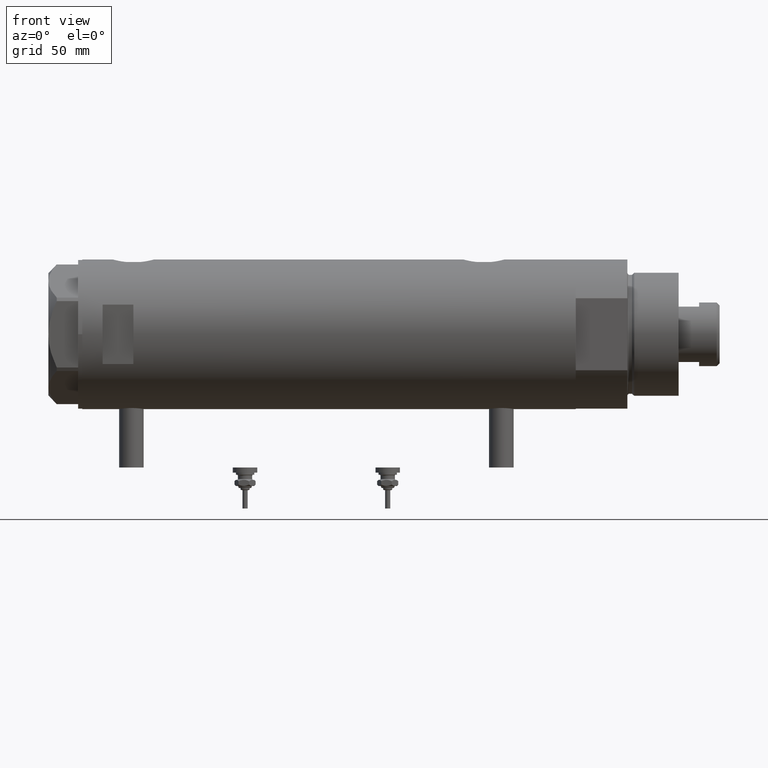
[diagram: clean part render]
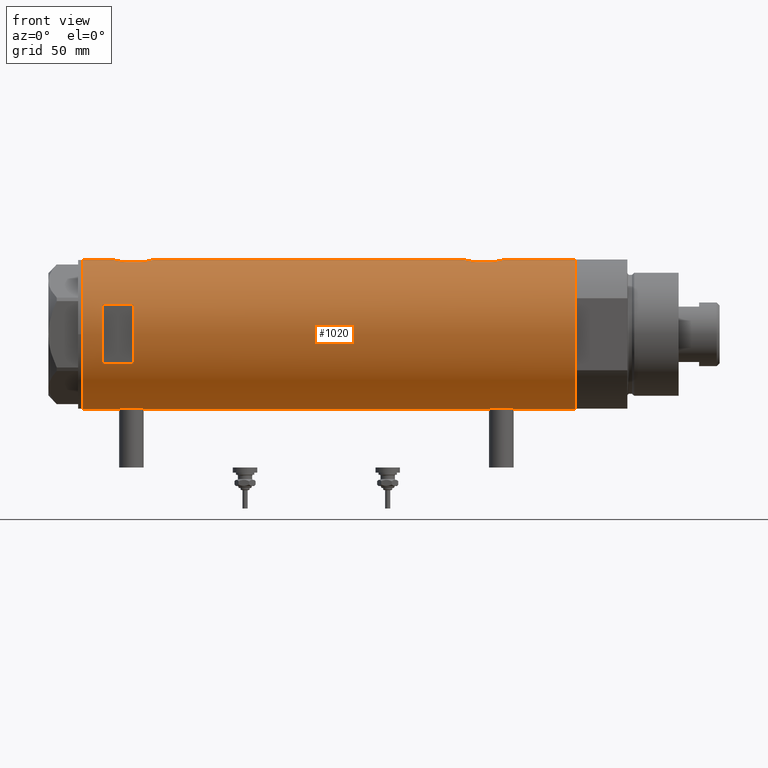
[diagram: same view with one face highlighted and labeled with its STEP entity id]
A machine part, front view. The second image highlights one B-rep face of the part: STEP entity #1020.
In plain terms, the highlighted cylindrical surface (partial cylindrical patch) has radius 36.5 mm, axis along (-1, -0, 0).
Its self-contained STEP definition (entity closure, byte-faithful):
#9 = VERTEX_POINT ( 'NONE', #5105 ) ;
#27 = AXIS2_PLACEMENT_3D ( 'NONE', #1417, #3263, #978 ) ;
#57 = VERTEX_POINT ( 'NONE', #4747 ) ;
#107 = CARTESIAN_POINT ( 'NONE',  ( -36.49297138689434661, -0.8222528563518530786, -77.89066887946569295 ) ) ;
#166 = CARTESIAN_POINT ( 'NONE',  ( 36.48960339336947101, -1.002724032967601708, 85.43775134026506635 ) ) ;
#170 = VERTEX_POINT ( 'NONE', #5384 ) ;
#174 = VECTOR ( 'NONE', #3388, 1000.000000000000000 ) ;
#179 = CARTESIAN_POINT ( 'NONE',  ( -36.35061318816141096, -3.303361544904982239, 91.09035958056982452 ) ) ;
#186 = CARTESIAN_POINT ( 'NONE',  ( 36.41856252531823657, -2.482507212621166470, -85.29956512846501937 ) ) ;
#204 = CARTESIAN_POINT ( 'NONE',  ( -36.44621655743049615, -2.016281777336074832, 90.47017023300885796 ) ) ;
#261 = CARTESIAN_POINT ( 'NONE',  ( -36.49315367594273596, -0.8144497809045447845, 90.18960214445247914 ) ) ;
#286 = CARTESIAN_POINT ( 'NONE',  ( -36.19599073318030236, -4.702920041824403263, -79.97846168323422944 ) ) ;
#287 = CARTESIAN_POINT ( 'NONE',  ( 35.52323553852023963, -8.411295122831250026, -70.10247607048910368 ) ) ;
#310 = LINE ( 'NONE', #2607, #1827 ) ;
#340 = CARTESIAN_POINT ( 'NONE',  ( -36.50000000000000000, 4.469960816887838430E-15, -120.4000000000000057 ) ) ;
#344 = CARTESIAN_POINT ( 'NONE',  ( -36.19666146462960654, -4.704890678739094945, -88.23429859510781625 ) ) ;
#381 = DIRECTION ( 'NONE',  ( 0.000000000000000000, 0.000000000000000000, 1.000000000000000000 ) ) ;
#392 = CARTESIAN_POINT ( 'NONE',  ( 36.50000000000000000, 4.344614706140975428E-19, 105.4000000000000057 ) ) ;
#399 = CARTESIAN_POINT ( 'NONE',  ( -35.98821803976956346, -6.090959022952117330, -82.68426116850582730 ) ) ;
#404 = ORIENTED_EDGE ( 'NONE', *, *, #720, .F. ) ;
#452 = CARTESIAN_POINT ( 'NONE',  ( 36.29527920868844859, -3.886508670267145416, -84.82716275830861719 ) ) ;
#499 = VECTOR ( 'NONE', #3666, 1000.000000000000000 ) ;
#502 = DIRECTION ( 'NONE',  ( 0.000000000000000000, 0.000000000000000000, 1.000000000000000000 ) ) ;
#511 = EDGE_CURVE ( 'NONE', #3649, #4771, #5029, .T. ) ;
#519 = ORIENTED_EDGE ( 'NONE', *, *, #3572, .T. ) ;
#525 = CARTESIAN_POINT ( 'NONE',  ( -36.43335814606993495, -2.212659578761325463, -78.25123600830491455 ) ) ;
#532 = CARTESIAN_POINT ( 'NONE',  ( 35.79638309643555516, -7.141827709208434349, 102.4170192696955013 ) ) ;
#538 = EDGE_CURVE ( 'NONE', #3658, #4526, #3671, .T. ) ;
#587 = CARTESIAN_POINT ( 'NONE',  ( -36.50000000000000000, 4.469960816887838430E-15, -120.4000000000000057 ) ) ;
#615 = CARTESIAN_POINT ( 'NONE',  ( 36.34184199234172041, -3.427106516421255744, 85.99259086319968048 ) ) ;
#627 = CARTESIAN_POINT ( 'NONE',  ( -36.26692673949090562, -4.128477002029503851, 91.69000012567835256 ) ) ;
#646 = CARTESIAN_POINT ( 'NONE',  ( 35.29999999999999716, -9.282241108697837362, 99.12021504754764578 ) ) ;
#647 = CARTESIAN_POINT ( 'NONE',  ( -36.50000000000000000, 4.469960816887838430E-15, -120.4000000000000057 ) ) ;
#672 = CARTESIAN_POINT ( 'NONE',  ( 35.52323553852023963, -8.411295122831250026, 100.8975239295108821 ) ) ;
#673 = CARTESIAN_POINT ( 'NONE',  ( 35.39807338191549491, -8.909271871950329214, -70.94919617267213141 ) ) ;
#681 = CARTESIAN_POINT ( 'NONE',  ( -36.49999999999999289, -0.4082012689449562859, 90.15000000000001990 ) ) ;
#689 = CARTESIAN_POINT ( 'NONE',  ( 36.44881677724178104, -1.995085670027227032, -85.41180345369463112 ) ) ;
#714 = CARTESIAN_POINT ( 'NONE',  ( -36.06543684817881257, -5.617774235967367247, 99.16954447971704667 ) ) ;
#720 = EDGE_CURVE ( 'NONE', #4771, #2738, #5115, .T. ) ;
#735 = EDGE_CURVE ( 'NONE', #2236, #3239, #4316, .T. ) ;
#763 = CARTESIAN_POINT ( 'NONE',  ( 14.49137674618942739, -33.50000000000000000, 95.40000000000000568 ) ) ;
#765 = ORIENTED_EDGE ( 'NONE', *, *, #2358, .T. ) ;
#772 = CARTESIAN_POINT ( 'NONE',  ( -36.30107494031872051, -3.820993528321233068, 101.3630615353631157 ) ) ;
#829 = CARTESIAN_POINT ( 'NONE',  ( -36.01675918113430441, -5.920026275461277798, -86.11439556517892413 ) ) ;
#835 = CARTESIAN_POINT ( 'NONE',  ( -36.44454782745417276, -2.020757099930494682, 102.3178586442099913 ) ) ;
#899 = B_SPLINE_CURVE_WITH_KNOTS ( 'NONE', 3,
 ( #3720, #1014, #4720, #1925, #3782, #5573, #2837, #5190, #4690, #5138, #2796, #4750, #615, #2436, #4182, #166, #3839, #1063 ),
 .UNSPECIFIED., .F., .F.,
 ( 4, 2, 2, 2, 2, 2, 2, 2, 4 ),
 ( -0.01189883390545606531, -0.008924125429092034240, -0.008180448310001031675, -0.007436771190910029979, -0.005949416952728023983, -0.004462062714546017987, -0.002974708476364010257, -0.001487354238182005128, 1.734723475976807094E-18 ),
 .UNSPECIFIED. ) ;
#907 = ORIENTED_EDGE ( 'NONE', *, *, #4025, .F. ) ;
#910 = CARTESIAN_POINT ( 'NONE',  ( 36.18850502651835654, -4.779575967213809840, -84.39779152890152147 ) ) ;
#915 = EDGE_CURVE ( 'NONE', #2116, #9, #4104, .T. ) ;
#919 = CARTESIAN_POINT ( 'NONE',  ( -36.47262891311153510, -1.427622242603855396, -78.01175370788301677 ) ) ;
#978 = DIRECTION ( 'NONE',  ( 1.000000000000000000, 0.000000000000000000, 0.000000000000000000 ) ) ;
#982 = AXIS2_PLACEMENT_3D ( 'NONE', #2590, #1775, #1712 ) ;
#989 = CARTESIAN_POINT ( 'NONE',  ( 36.00092304812866217, -6.029438422680412302, 103.3930815557365008 ) ) ;
#1006 = CARTESIAN_POINT ( 'NONE',  ( 35.29999999999999716, -9.282241108697837362, -120.4000000000000057 ) ) ;
#1014 = CARTESIAN_POINT ( 'NONE',  ( 35.39794035667548400, -8.909777761736840773, 90.75045840910549089 ) ) ;
#1018 = CARTESIAN_POINT ( 'NONE',  ( 36.50000000000000711, -0.4962708696651116913, 105.4000000000000199 ) ) ;
#1020 = ADVANCED_FACE ( 'NONE', ( #2763, #3295 ), #2836, .T. ) ;
#1063 = CARTESIAN_POINT ( 'NONE',  ( 36.50000000000000000, 0.000000000000000000, 85.40000000000001990 ) ) ;
#1086 = DIRECTION ( 'NONE',  ( 1.000000000000000000, 0.000000000000000000, 0.000000000000000000 ) ) ;
#1095 = CARTESIAN_POINT ( 'NONE',  ( 35.29999999999999716, -9.282241108697837362, -79.32021504754763441 ) ) ;
#1109 = CARTESIAN_POINT ( 'NONE',  ( -36.01639592019625979, -5.922235714778421034, 98.40796802426915235 ) ) ;
#1158 = CARTESIAN_POINT ( 'NONE',  ( 36.41918031349423757, -2.473644131148923009, -65.89811654536809726 ) ) ;
#1192 = VECTOR ( 'NONE', #5930, 1000.000000000000000 ) ;
#1222 = CARTESIAN_POINT ( 'NONE',  ( -36.21356728133255842, -4.566014386638764577, -79.82737339235254126 ) ) ;
#1227 = DIRECTION ( 'NONE',  ( 1.000000000000000000, 0.000000000000000000, 0.000000000000000000 ) ) ;
#1249 = CARTESIAN_POINT ( 'NONE',  ( -36.30107494031872051, -3.820993528321233068, -79.13693846463692694 ) ) ;
#1276 = CARTESIAN_POINT ( 'NONE',  ( -36.06605150775667568, -5.613853192123348101, -86.87765688272544651 ) ) ;
#1279 = VECTOR ( 'NONE', #502, 1000.000000000000000 ) ;
#1287 = CIRCLE ( 'NONE', #2153, 36.50000000000000000 ) ;
#1304 = CARTESIAN_POINT ( 'NONE',  ( -36.49315367594273596, -0.8144497809045447845, -90.31039785554752086 ) ) ;
#1310 = DIRECTION ( 'NONE',  ( 0.000000000000000000, 0.000000000000000000, 1.000000000000000000 ) ) ;
#1323 = CARTESIAN_POINT ( 'NONE',  ( 35.93363298843768661, -6.415574104180976178, -83.28651472888894602 ) ) ;
#1331 = CARTESIAN_POINT ( 'NONE',  ( -36.01639592019625979, -5.922235714778421034, -82.09203197573087607 ) ) ;
#1368 = CARTESIAN_POINT ( 'NONE',  ( 36.18674680775578167, -4.776679548204626258, 104.1889231693125026 ) ) ;
#1370 = VECTOR ( 'NONE', #1310, 1000.000000000000000 ) ;
#1389 = EDGE_CURVE ( 'NONE', #3001, #5772, #5091, .T. ) ;
#1392 = CARTESIAN_POINT ( 'NONE',  ( -36.36656776002988778, -3.137002187003158582, -78.67863590726369694 ) ) ;
#1396 = CARTESIAN_POINT ( 'NONE',  ( 36.09633718678917802, -5.417295330713078449, 103.8091486734521283 ) ) ;
#1417 = CARTESIAN_POINT ( 'NONE',  ( 0.000000000000000000, 0.000000000000000000, -120.4000000000000057 ) ) ;
#1427 = CARTESIAN_POINT ( 'NONE',  ( 36.44931971524465553, -1.985988150549293341, 105.2136686053176078 ) ) ;
#1447 = CARTESIAN_POINT ( 'NONE',  ( -36.46417279006304568, -1.628689148039109247, -78.06246061306184458 ) ) ;
#1494 = LINE ( 'NONE', #1006, #3988 ) ;
#1496 = EDGE_LOOP ( 'NONE', ( #2729, #5636, #2240, #3499 ) ) ;
#1532 = CARTESIAN_POINT ( 'NONE',  ( 0.000000000000000000, 0.000000000000000000, 95.40000000000014779 ) ) ;
#1546 = VECTOR ( 'NONE', #3194, 1000.000000000000000 ) ;
#1572 = CARTESIAN_POINT ( 'NONE',  ( -36.16125812922425098, -4.962923794285024393, 100.2044608591076127 ) ) ;
#1610 = ORIENTED_EDGE ( 'NONE', *, *, #915, .F. ) ;
#1616 = CARTESIAN_POINT ( 'NONE',  ( -36.50000000000000000, 4.469960493350315609E-15, -90.35000000000000853 ) ) ;
#1654 = CARTESIAN_POINT ( 'NONE',  ( 35.29999999999999716, -9.282241108697837362, -71.87978495245236843 ) ) ;
#1680 = CARTESIAN_POINT ( 'NONE',  ( -36.16125812922425098, -4.962923794285024393, -80.29553914089240152 ) ) ;
#1685 = CARTESIAN_POINT ( 'NONE',  ( -36.50000000000000000, 1.603939656238031057E-15, 102.6500000000000199 ) ) ;
#1702 = LINE ( 'NONE', #4505, #1192 ) ;
#1712 = DIRECTION ( 'NONE',  ( 1.000000000000000000, 0.000000000000000000, 0.000000000000000000 ) ) ;
#1739 = CARTESIAN_POINT ( 'NONE',  ( -36.36635911126388265, -3.125815113635437292, -89.51605600407906138 ) ) ;
#1745 = CARTESIAN_POINT ( 'NONE',  ( -36.39621039793029666, -2.776267550998806843, 102.0143075310678000 ) ) ;
#1747 = CARTESIAN_POINT ( 'NONE',  ( 36.50000000000000000, 0.000000000000000000, -120.4000000000000057 ) ) ;
#1758 = CARTESIAN_POINT ( 'NONE',  ( 35.83108131285856501, -6.958268797611358636, -82.78630783372825874 ) ) ;
#1775 = DIRECTION ( 'NONE',  ( 0.000000000000000000, 0.000000000000000000, 1.000000000000000000 ) ) ;
#1826 = VERTEX_POINT ( 'NONE', #2447 ) ;
#1827 = VECTOR ( 'NONE', #4054, 1000.000000000000000 ) ;
#1839 = CARTESIAN_POINT ( 'NONE',  ( 36.21540437201188922, -4.554727782332258279, 104.3059762908862638 ) ) ;
#1896 = CARTESIAN_POINT ( 'NONE',  ( 36.50000000000000000, 4.344614706140975428E-19, -65.60000000000000853 ) ) ;
#1916 = VERTEX_POINT ( 'NONE', #1896 ) ;
#1918 = ORIENTED_EDGE ( 'NONE', *, *, #3529, .T. ) ;
#1925 = CARTESIAN_POINT ( 'NONE',  ( 35.69273631926343882, -7.635692914629149008, 88.93799804348513760 ) ) ;
#2002 = CARTESIAN_POINT ( 'NONE',  ( -35.98821803976956346, -6.090959022952117330, 97.81573883149417270 ) ) ;
#2033 = CARTESIAN_POINT ( 'NONE',  ( -36.30176144752229561, -3.814344296723636951, 91.43198298049746597 ) ) ;
#2063 = CARTESIAN_POINT ( 'NONE',  ( -36.02823773219768810, -5.849994928883552880, 94.19044898514356134 ) ) ;
#2081 = DIRECTION ( 'NONE',  ( -0.000000000000000000, -4.625929269271492422E-15, 1.000000000000000000 ) ) ;
#2092 = CARTESIAN_POINT ( 'NONE',  ( 0.000000000000000000, 0.000000000000000000, 110.3999999999999915 ) ) ;
#2102 = CARTESIAN_POINT ( 'NONE',  ( -36.50000000000000000, 4.469960816887838430E-15, 120.4000000000000057 ) ) ;
#2116 = VERTEX_POINT ( 'NONE', #1616 ) ;
#2117 = CARTESIAN_POINT ( 'NONE',  ( -36.49999999999999289, -0.4082012689449562859, -90.34999999999998010 ) ) ;
#2124 = CARTESIAN_POINT ( 'NONE',  ( -36.16096637594732499, -4.968588355849258953, 92.58665507182242038 ) ) ;
#2125 = EDGE_CURVE ( 'NONE', #170, #5714, #3093, .T. ) ;
#2151 = CARTESIAN_POINT ( 'NONE',  ( -35.99659093586380010, -6.041447834568799635, -82.48577587985177217 ) ) ;
#2152 = CARTESIAN_POINT ( 'NONE',  ( 36.00092304812866217, -6.029438422680412302, -67.60691844426347075 ) ) ;
#2153 = AXIS2_PLACEMENT_3D ( 'NONE', #3950, #5768, #1086 ) ;
#2156 = CARTESIAN_POINT ( 'NONE',  ( -36.50000000000001421, -0.4136690418839317762, 102.6500000000000341 ) ) ;
#2164 = CARTESIAN_POINT ( 'NONE',  ( 14.49137674618942739, -33.50000000000000000, -120.4000000000000057 ) ) ;
#2170 = LINE ( 'NONE', #3073, #1546 ) ;
#2204 = ORIENTED_EDGE ( 'NONE', *, *, #4594, .T. ) ;
#2236 = VERTEX_POINT ( 'NONE', #392 ) ;
#2240 = ORIENTED_EDGE ( 'NONE', *, *, #3392, .F. ) ;
#2253 = EDGE_LOOP ( 'NONE', ( #4383, #4615, #3238, #3687, #2204, #2935, #519, #907, #765, #4002, #1918, #5094, #404, #5438, #3004, #1610 ) ) ;
#2263 = CARTESIAN_POINT ( 'NONE',  ( -36.39621039793029666, -2.776267550998806843, -78.48569246893224260 ) ) ;
#2282 = CARTESIAN_POINT ( 'NONE',  ( 36.34184199234172041, -3.427106516421255744, -85.00740913680034794 ) ) ;
#2358 = EDGE_CURVE ( 'NONE', #2934, #3239, #310, .T. ) ;
#2364 = CARTESIAN_POINT ( 'NONE',  ( 35.69273631926343882, -7.635692914629149008, -82.06200195651489082 ) ) ;
#2392 = CARTESIAN_POINT ( 'NONE',  ( 36.48960339336947101, -1.002724032967601708, -85.56224865973499050 ) ) ;
#2415 = CARTESIAN_POINT ( 'NONE',  ( 36.41918031349423757, -2.473644131148923009, 105.1018834546319027 ) ) ;
#2436 = CARTESIAN_POINT ( 'NONE',  ( 36.41856252531823657, -2.482507212621166470, 85.70043487153495221 ) ) ;
#2445 = CARTESIAN_POINT ( 'NONE',  ( -35.96095902952617251, -6.249754054240900913, 95.98341234579532966 ) ) ;
#2447 = CARTESIAN_POINT ( 'NONE',  ( 36.50000000000000000, 0.000000000000000000, 85.40000000000001990 ) ) ;
#2500 = CARTESIAN_POINT ( 'NONE',  ( 36.50000000000000711, -0.4962708696651116913, -65.60000000000000853 ) ) ;
#2533 = CARTESIAN_POINT ( 'NONE',  ( 36.44931971524465553, -1.985988150549293341, -65.78633139468234958 ) ) ;
#2535 = CARTESIAN_POINT ( 'NONE',  ( -36.19599073318030236, -4.702920041824403263, 100.5215383167658274 ) ) ;
#2556 = CARTESIAN_POINT ( 'NONE',  ( -36.09514898390870030, -5.426114745500164815, -80.97161347053862812 ) ) ;
#2564 = CARTESIAN_POINT ( 'NONE',  ( -36.36635911126388265, -3.125815113635437292, 90.98394399592098125 ) ) ;
#2577 = CARTESIAN_POINT ( 'NONE',  ( -14.49137674618942739, -33.50000000000000000, 110.3999999999999915 ) ) ;
#2583 = CARTESIAN_POINT ( 'NONE',  ( 36.50000000000000000, 4.344614706140975428E-19, -65.60000000000000853 ) ) ;
#2590 = CARTESIAN_POINT ( 'NONE',  ( 0.000000000000000000, 0.000000000000000000, -120.4000000000000057 ) ) ;
#2607 = CARTESIAN_POINT ( 'NONE',  ( 35.29999999999999716, -9.282241108697837362, -120.4000000000000057 ) ) ;
#2613 = CARTESIAN_POINT ( 'NONE',  ( -36.40915499150419521, -2.580495338846545472, -89.79605013355480025 ) ) ;
#2614 = CARTESIAN_POINT ( 'NONE',  ( 35.72583162417570435, -7.484316398521980496, -68.94957356280497152 ) ) ;
#2620 = CARTESIAN_POINT ( 'NONE',  ( -36.46417279006304568, -1.628689148039109247, 102.4375393869382123 ) ) ;
#2673 = CARTESIAN_POINT ( 'NONE',  ( -36.02782481185206365, -5.852531070448506512, -81.89722991047811718 ) ) ;
#2699 = CIRCLE ( 'NONE', #5127, 36.50000000000000000 ) ;
#2729 = ORIENTED_EDGE ( 'NONE', *, *, #2125, .F. ) ;
#2738 = VERTEX_POINT ( 'NONE', #2102 ) ;
#2740 = CARTESIAN_POINT ( 'NONE',  ( 36.50000000000000000, 0.000000000000000000, -120.4000000000000057 ) ) ;
#2763 = FACE_OUTER_BOUND ( 'NONE', #2253, .T. ) ;
#2796 = CARTESIAN_POINT ( 'NONE',  ( 36.18850502651835654, -4.779575967213809840, 86.60220847109846432 ) ) ;
#2806 = CARTESIAN_POINT ( 'NONE',  ( 35.93373217836897737, -6.415110096330620237, 103.0870426635509176 ) ) ;
#2822 = CARTESIAN_POINT ( 'NONE',  ( -36.40915499150419521, -2.580495338846545472, 90.70394986644524238 ) ) ;
#2836 = CYLINDRICAL_SURFACE ( 'NONE', #27, 36.50000000000000000 ) ;
#2837 = CARTESIAN_POINT ( 'NONE',  ( 35.83108131285856501, -6.958268797611358636, 88.21369216627178389 ) ) ;
#2886 = CARTESIAN_POINT ( 'NONE',  ( 36.50000000000000000, 0.000000000000000000, -120.4000000000000057 ) ) ;
#2933 = LINE ( 'NONE', #3330, #174 ) ;
#2934 = VERTEX_POINT ( 'NONE', #3837 ) ;
#2935 = ORIENTED_EDGE ( 'NONE', *, *, #3759, .F. ) ;
#2943 = CARTESIAN_POINT ( 'NONE',  ( -36.02782481185206365, -5.852531070448506512, 98.60277008952193967 ) ) ;
#2978 = CARTESIAN_POINT ( 'NONE',  ( 36.50000000000000000, 0.000000000000000000, -85.59999999999999432 ) ) ;
#2998 = CARTESIAN_POINT ( 'NONE',  ( 36.21540437201188922, -4.554727782332258279, -66.69402370911377886 ) ) ;
#3001 = VERTEX_POINT ( 'NONE', #1095 ) ;
#3004 = ORIENTED_EDGE ( 'NONE', *, *, #3038, .F. ) ;
#3005 = CARTESIAN_POINT ( 'NONE',  ( -36.39558535855674393, -2.764807686268001774, 90.79105881454391636 ) ) ;
#3038 = EDGE_CURVE ( 'NONE', #9, #3649, #2170, .T. ) ;
#3052 = CARTESIAN_POINT ( 'NONE',  ( -36.26616882068471170, -4.135065845178865551, -79.39584944059912175 ) ) ;
#3073 = CARTESIAN_POINT ( 'NONE',  ( -36.50000000000000000, 4.469960816887838430E-15, -120.4000000000000057 ) ) ;
#3081 = CARTESIAN_POINT ( 'NONE',  ( -35.96816095843705341, -6.208699946936198977, -84.92496377127787355 ) ) ;
#3093 = CIRCLE ( 'NONE', #5021, 36.50000000000000000 ) ;
#3115 = CARTESIAN_POINT ( 'NONE',  ( -36.46614432713124643, -1.622933015999963313, -90.14966597386847980 ) ) ;
#3141 = CARTESIAN_POINT ( 'NONE',  ( -35.99695583620881933, -6.039273428153905776, -85.72224444987756442 ) ) ;
#3142 = CARTESIAN_POINT ( 'NONE',  ( 35.29999999999999716, -9.282241108697837362, -71.87978495245236843 ) ) ;
#3194 = DIRECTION ( 'NONE',  ( 0.000000000000000000, 0.000000000000000000, 1.000000000000000000 ) ) ;
#3238 = ORIENTED_EDGE ( 'NONE', *, *, #5534, .T. ) ;
#3239 = VERTEX_POINT ( 'NONE', #3343 ) ;
#3263 = DIRECTION ( 'NONE',  ( 0.000000000000000000, 0.000000000000000000, 1.000000000000000000 ) ) ;
#3283 = CARTESIAN_POINT ( 'NONE',  ( -35.98855750525641639, -6.088954600884530777, 94.97569773849834007 ) ) ;
#3286 = CARTESIAN_POINT ( 'NONE',  ( 35.29999999999999716, -9.282241108697837362, -79.32021504754763441 ) ) ;
#3295 = FACE_BOUND ( 'NONE', #1496, .T. ) ;
#3308 = VECTOR ( 'NONE', #4144, 1000.000000000000000 ) ;
#3319 = CARTESIAN_POINT ( 'NONE',  ( 36.50000000000000711, -0.5031001875915692700, -85.59999999999999432 ) ) ;
#3330 = CARTESIAN_POINT ( 'NONE',  ( 36.50000000000000000, 0.000000000000000000, -120.4000000000000057 ) ) ;
#3343 = CARTESIAN_POINT ( 'NONE',  ( 35.29999999999999716, -9.282241108697837362, 99.12021504754764578 ) ) ;
#3346 = DIRECTION ( 'NONE',  ( 0.000000000000000000, 0.000000000000000000, 1.000000000000000000 ) ) ;
#3388 = DIRECTION ( 'NONE',  ( 0.000000000000000000, 0.000000000000000000, 1.000000000000000000 ) ) ;
#3392 = EDGE_CURVE ( 'NONE', #3566, #4246, #2699, .T. ) ;
#3428 = CARTESIAN_POINT ( 'NONE',  ( -36.14410773716529235, -5.085921866747754372, 100.0383587842047461 ) ) ;
#3457 = CARTESIAN_POINT ( 'NONE',  ( -36.19666146462960654, -4.704890678739094945, 92.26570140489218375 ) ) ;
#3482 = CARTESIAN_POINT ( 'NONE',  ( 36.34247810649306132, -3.420510937483959513, -66.19013481598274495 ) ) ;
#3499 = ORIENTED_EDGE ( 'NONE', *, *, #4962, .F. ) ;
#3514 = CARTESIAN_POINT ( 'NONE',  ( -36.26692673949090562, -4.128477002029503851, -88.80999987432169007 ) ) ;
#3529 = EDGE_CURVE ( 'NONE', #2236, #57, #3668, .T. ) ;
#3566 = VERTEX_POINT ( 'NONE', #4073 ) ;
#3572 = EDGE_CURVE ( 'NONE', #1916, #1826, #5884, .T. ) ;
#3602 = CARTESIAN_POINT ( 'NONE',  ( -35.98855750525641639, -6.088954600884530777, -85.52430226150170256 ) ) ;
#3620 = CARTESIAN_POINT ( 'NONE',  ( 36.00068527486601511, -6.030855700422090848, -83.59201327127354375 ) ) ;
#3649 = VERTEX_POINT ( 'NONE', #5196 ) ;
#3658 = VERTEX_POINT ( 'NONE', #647 ) ;
#3659 = CARTESIAN_POINT ( 'NONE',  ( -36.50000000000000000, 1.603939656238031057E-15, -77.85000000000000853 ) ) ;
#3666 = DIRECTION ( 'NONE',  ( 0.000000000000000000, 0.000000000000000000, 1.000000000000000000 ) ) ;
#3668 = LINE ( 'NONE', #2740, #1279 ) ;
#3671 = CIRCLE ( 'NONE', #982, 36.50000000000000000 ) ;
#3681 = CARTESIAN_POINT ( 'NONE',  ( 36.12792682573228831, -5.214735277442335004, -84.14693117988699100 ) ) ;
#3687 = ORIENTED_EDGE ( 'NONE', *, *, #1389, .F. ) ;
#3699 = CARTESIAN_POINT ( 'NONE',  ( 36.12724769814495573, -5.207618053557754756, 103.9406412048846704 ) ) ;
#3708 = B_SPLINE_CURVE_WITH_KNOTS ( 'NONE', 3,
 ( #2583, #2500, #5755, #2533, #1158, #3482, #4422, #2998, #5339, #5254, #5725, #2152, #4846, #4453, #2614, #287, #673, #1654 ),
 .UNSPECIFIED., .F., .F.,
 ( 4, 2, 2, 2, 2, 2, 2, 2, 4 ),
 ( 0.01190956515753145012, 0.01339852714138290227, 0.01488748912523435441, 0.01637645110908580656, 0.01712093210101153090, 0.01786541309293725871, 0.01935437507678870739, 0.02084333706064015260, 0.02382126102834301526 ),
 .UNSPECIFIED. ) ;
#3720 = CARTESIAN_POINT ( 'NONE',  ( 35.29999999999999716, -9.282241108697837362, 91.67978495245237980 ) ) ;
#3759 = EDGE_CURVE ( 'NONE', #1916, #3874, #3708, .T. ) ;
#3779 = CARTESIAN_POINT ( 'NONE',  ( -36.50000000000001421, -0.4136690418839317762, -77.85000000000002274 ) ) ;
#3782 = CARTESIAN_POINT ( 'NONE',  ( 35.72742963626381396, -7.471989379615407323, 88.74937739587225849 ) ) ;
#3837 = CARTESIAN_POINT ( 'NONE',  ( 35.29999999999999716, -9.282241108697837362, 91.67978495245237980 ) ) ;
#3839 = CARTESIAN_POINT ( 'NONE',  ( 36.50000000000000711, -0.5031001875915692700, 85.40000000000004832 ) ) ;
#3849 = CARTESIAN_POINT ( 'NONE',  ( -35.99659093586380010, -6.041447834568799635, 98.01422412014827046 ) ) ;
#3874 = VERTEX_POINT ( 'NONE', #3142 ) ;
#3882 = CARTESIAN_POINT ( 'NONE',  ( -35.96087392089862789, -6.250243747806517369, 96.80917490776182888 ) ) ;
#3929 = DIRECTION ( 'NONE',  ( 1.776356839400250465E-15, 1.000000000000000000, 4.562560375171875891E-15 ) ) ;
#3950 = CARTESIAN_POINT ( 'NONE',  ( 0.000000000000000000, 0.000000000000000000, 120.4000000000000057 ) ) ;
#3968 = CARTESIAN_POINT ( 'NONE',  ( -36.50000000000000000, 4.469960493350315609E-15, -90.35000000000000853 ) ) ;
#3974 = CARTESIAN_POINT ( 'NONE',  ( -36.06605150775667568, -5.613853192123348101, 93.62234311727458191 ) ) ;
#3975 = DIRECTION ( 'NONE',  ( -0.000000000000000000, 0.000000000000000000, -1.000000000000000000 ) ) ;
#3988 = VECTOR ( 'NONE', #3346, 1000.000000000000000 ) ;
#3999 = CARTESIAN_POINT ( 'NONE',  ( -36.39558535855674393, -2.764807686268001774, -89.70894118545612628 ) ) ;
#4002 = ORIENTED_EDGE ( 'NONE', *, *, #735, .F. ) ;
#4025 = EDGE_CURVE ( 'NONE', #2934, #1826, #899, .T. ) ;
#4037 = CARTESIAN_POINT ( 'NONE',  ( -36.36656776002988778, -3.137002187003158582, 101.8213640927363457 ) ) ;
#4054 = DIRECTION ( 'NONE',  ( 0.000000000000000000, 0.000000000000000000, 1.000000000000000000 ) ) ;
#4073 = CARTESIAN_POINT ( 'NONE',  ( 14.49137674618942739, -33.50000000000000000, 110.3999999999999915 ) ) ;
#4104 = B_SPLINE_CURVE_WITH_KNOTS ( 'NONE', 3,
 ( #3968, #2117, #1304, #3115, #5453, #2613, #3999, #1739, #4957, #4482, #3514, #344, #5875, #5396, #1276, #5365, #829, #3141, #3602, #3081, #4449, #5424, #4984, #399, #2151, #1331, #2673, #4540, #2556, #5338, #1680, #286, #1222, #3052, #1249, #1392, #2263, #525, #4662, #1447, #919, #107, #3779, #3659 ),
 .UNSPECIFIED., .F., .F.,
 ( 4, 2, 2, 2, 2, 2, 2, 2, 2, 2, 2, 2, 2, 2, 2, 2, 2, 2, 2, 2, 2, 4 ),
 ( 0.01957644481942643136, 0.02079966591703043266, 0.02202288701463443049, 0.02263449756343642941, 0.02324610811223842832, 0.02446932920984242615, 0.02569255030744642398, 0.02691577140505042529, 0.02752738195385242420, 0.02813899250265442659, 0.02936221360025846605, 0.03058543469786250205, 0.03119704524666452178, 0.03180865579546654498, 0.03303187689307057751, 0.03364348744187262152, 0.03425509799067465166, 0.03547831908827869807, 0.03670154018588274447, 0.03731315073468477461, 0.03792476128348679781, 0.03914798238109084422 ),
 .UNSPECIFIED. ) ;
#4144 = DIRECTION ( 'NONE',  ( 0.000000000000000000, 0.000000000000000000, 1.000000000000000000 ) ) ;
#4182 = CARTESIAN_POINT ( 'NONE',  ( 36.44881677724178104, -1.995085670027227032, 85.58819654630534046 ) ) ;
#4228 = CARTESIAN_POINT ( 'NONE',  ( 35.79656810172926384, -7.133411935499478496, -82.61254878557676307 ) ) ;
#4246 = VERTEX_POINT ( 'NONE', #2577 ) ;
#4315 = EDGE_CURVE ( 'NONE', #3658, #2116, #5388, .T. ) ;
#4316 = B_SPLINE_CURVE_WITH_KNOTS ( 'NONE', 3,
 ( #5143, #1018, #5165, #1427, #2415, #5941, #5495, #1839, #1368, #3699, #1396, #989, #2806, #532, #5633, #672, #4844, #646 ),
 .UNSPECIFIED., .F., .F.,
 ( 4, 2, 2, 2, 2, 2, 2, 2, 4 ),
 ( 0.01190956515753145012, 0.01339852714138290227, 0.01488748912523435441, 0.01637645110908580656, 0.01712093210101153090, 0.01786541309293725871, 0.01935437507678870739, 0.02084333706064015260, 0.02382126102834301526 ),
 .UNSPECIFIED. ) ;
#4383 = ORIENTED_EDGE ( 'NONE', *, *, #4315, .F. ) ;
#4398 = CARTESIAN_POINT ( 'NONE',  ( -36.21356728133255842, -4.566014386638764577, 100.6726266076474730 ) ) ;
#4422 = CARTESIAN_POINT ( 'NONE',  ( 36.29582892817134621, -3.881628320031159873, -66.37065565465010764 ) ) ;
#4449 = CARTESIAN_POINT ( 'NONE',  ( -35.96095902952617251, -6.249754054240900913, -84.51658765420468455 ) ) ;
#4451 = EDGE_CURVE ( 'NONE', #4246, #170, #1702, .T. ) ;
#4453 = CARTESIAN_POINT ( 'NONE',  ( 35.79638309643555516, -7.141827709208434349, -68.58298073030452713 ) ) ;
#4478 = CARTESIAN_POINT ( 'NONE',  ( 36.50000000000000000, 0.000000000000000000, -85.59999999999999432 ) ) ;
#4482 = CARTESIAN_POINT ( 'NONE',  ( -36.30176144752229561, -3.814344296723636951, -89.06801701950256245 ) ) ;
#4505 = CARTESIAN_POINT ( 'NONE',  ( -14.49137674618942739, -33.50000000000000000, -120.4000000000000057 ) ) ;
#4526 = VERTEX_POINT ( 'NONE', #2886 ) ;
#4540 = CARTESIAN_POINT ( 'NONE',  ( -36.06543684817881257, -5.617774235967367247, -81.33045552028302438 ) ) ;
#4569 = CARTESIAN_POINT ( 'NONE',  ( 35.72742963626381396, -7.471989379615407323, -82.25062260412775572 ) ) ;
#4591 = CARTESIAN_POINT ( 'NONE',  ( 35.52320828895289395, -8.411622242316134646, -81.09772865944610487 ) ) ;
#4594 = EDGE_CURVE ( 'NONE', #3001, #3874, #1494, .T. ) ;
#4615 = ORIENTED_EDGE ( 'NONE', *, *, #538, .T. ) ;
#4662 = CARTESIAN_POINT ( 'NONE',  ( -36.44454782745417276, -2.020757099930494682, -78.18214135579003710 ) ) ;
#4690 = CARTESIAN_POINT ( 'NONE',  ( 36.00068527486601511, -6.030855700422090848, 87.40798672872648467 ) ) ;
#4707 = EDGE_CURVE ( 'NONE', #2738, #57, #1287, .T. ) ;
#4720 = CARTESIAN_POINT ( 'NONE',  ( 35.52320828895289395, -8.411622242316134646, 89.90227134055388092 ) ) ;
#4747 = CARTESIAN_POINT ( 'NONE',  ( 36.50000000000000000, 0.000000000000000000, 120.4000000000000057 ) ) ;
#4750 = CARTESIAN_POINT ( 'NONE',  ( 36.29527920868844859, -3.886508670267145416, 86.17283724169139703 ) ) ;
#4771 = VERTEX_POINT ( 'NONE', #5326 ) ;
#4786 = CARTESIAN_POINT ( 'NONE',  ( -36.09514898390870030, -5.426114745500164815, 99.52838652946141451 ) ) ;
#4844 = CARTESIAN_POINT ( 'NONE',  ( 35.39807338191549491, -8.909271871950329214, 100.0508038273278544 ) ) ;
#4846 = CARTESIAN_POINT ( 'NONE',  ( 35.93373217836897737, -6.415110096330620237, -67.91295733644906818 ) ) ;
#4877 = CARTESIAN_POINT ( 'NONE',  ( -36.50000000000000000, 4.469960493350315609E-15, 90.15000000000000568 ) ) ;
#4910 = LINE ( 'NONE', #2164, #5699 ) ;
#4957 = CARTESIAN_POINT ( 'NONE',  ( -36.35061318816141096, -3.303361544904982239, -89.40964041943020391 ) ) ;
#4962 = EDGE_CURVE ( 'NONE', #5714, #3566, #4910, .T. ) ;
#4964 = CARTESIAN_POINT ( 'NONE',  ( -36.43335814606993495, -2.212659578761325463, 102.2487639916951281 ) ) ;
#4984 = CARTESIAN_POINT ( 'NONE',  ( -35.96794010939611752, -6.209972807992079069, -83.28444451008648741 ) ) ;
#5021 = AXIS2_PLACEMENT_3D ( 'NONE', #1532, #2081, #3929 ) ;
#5029 = B_SPLINE_CURVE_WITH_KNOTS ( 'NONE', 3,
 ( #4877, #681, #261, #5317, #204, #2822, #3005, #2564, #179, #2033, #627, #3457, #2124, #5701, #3974, #2063, #5791, #5286, #3283, #5668, #2445, #3882, #5128, #2002, #3849, #1109, #2943, #714, #4786, #3428, #1572, #2535, #4398, #5258, #772, #4037, #1745, #4964, #835, #2620, #5853, #5463, #2156, #1685 ),
 .UNSPECIFIED., .F., .F.,
 ( 4, 2, 2, 2, 2, 2, 2, 2, 2, 2, 2, 2, 2, 2, 2, 2, 2, 2, 2, 2, 2, 4 ),
 ( 0.01957644481942643136, 0.02079966591703043266, 0.02202288701463443049, 0.02263449756343642941, 0.02324610811223842832, 0.02446932920984242615, 0.02569255030744642398, 0.02691577140505042529, 0.02752738195385242420, 0.02813899250265442659, 0.02936221360025846605, 0.03058543469786250205, 0.03119704524666452178, 0.03180865579546654498, 0.03303187689307057751, 0.03364348744187262152, 0.03425509799067465166, 0.03547831908827869807, 0.03670154018588274447, 0.03731315073468477461, 0.03792476128348679781, 0.03914798238109084422 ),
 .UNSPECIFIED. ) ;
#5091 = B_SPLINE_CURVE_WITH_KNOTS ( 'NONE', 3,
 ( #3286, #5130, #4591, #2364, #4569, #4228, #1758, #1323, #3620, #3681, #910, #452, #2282, #186, #689, #2392, #3319, #2978 ),
 .UNSPECIFIED., .F., .F.,
 ( 4, 2, 2, 2, 2, 2, 2, 2, 4 ),
 ( -0.01189883390545606531, -0.008924125429092034240, -0.008180448310001031675, -0.007436771190910029979, -0.005949416952728023983, -0.004462062714546017987, -0.002974708476364010257, -0.001487354238182005128, 1.734723475976807094E-18 ),
 .UNSPECIFIED. ) ;
#5094 = ORIENTED_EDGE ( 'NONE', *, *, #4707, .F. ) ;
#5105 = CARTESIAN_POINT ( 'NONE',  ( -36.50000000000000000, 1.603939656238031057E-15, -77.85000000000000853 ) ) ;
#5115 = LINE ( 'NONE', #587, #499 ) ;
#5127 = AXIS2_PLACEMENT_3D ( 'NONE', #2092, #3975, #1227 ) ;
#5128 = CARTESIAN_POINT ( 'NONE',  ( -35.96794010939611752, -6.209972807992079069, 97.21555548991356943 ) ) ;
#5130 = CARTESIAN_POINT ( 'NONE',  ( 35.39794035667548400, -8.909777761736840773, -80.24954159089453753 ) ) ;
#5138 = CARTESIAN_POINT ( 'NONE',  ( 36.12792682573228831, -5.214735277442335004, 86.85306882011300900 ) ) ;
#5143 = CARTESIAN_POINT ( 'NONE',  ( 36.50000000000000000, 4.344614706140975428E-19, 105.4000000000000057 ) ) ;
#5165 = CARTESIAN_POINT ( 'NONE',  ( 36.48988302519020266, -0.9927202255321166957, 105.3632698941130172 ) ) ;
#5190 = CARTESIAN_POINT ( 'NONE',  ( 35.93363298843768661, -6.415574104180976178, 87.71348527111109661 ) ) ;
#5196 = CARTESIAN_POINT ( 'NONE',  ( -36.50000000000000000, 4.469960493350315609E-15, 90.15000000000000568 ) ) ;
#5254 = CARTESIAN_POINT ( 'NONE',  ( 36.12724769814495573, -5.207618053557754756, -67.05935879511537223 ) ) ;
#5258 = CARTESIAN_POINT ( 'NONE',  ( -36.26616882068471170, -4.135065845178865551, 101.1041505594009635 ) ) ;
#5286 = CARTESIAN_POINT ( 'NONE',  ( -35.99695583620881933, -6.039273428153905776, 94.77775555012246400 ) ) ;
#5317 = CARTESIAN_POINT ( 'NONE',  ( -36.46614432713124643, -1.622933015999963313, 90.35033402613153442 ) ) ;
#5326 = CARTESIAN_POINT ( 'NONE',  ( -36.50000000000000000, 1.603939656238031057E-15, 102.6500000000000199 ) ) ;
#5338 = CARTESIAN_POINT ( 'NONE',  ( -36.14410773716529235, -5.085921866747754372, -80.46164121579529649 ) ) ;
#5339 = CARTESIAN_POINT ( 'NONE',  ( 36.18674680775578167, -4.776679548204626258, -66.81107683068754000 ) ) ;
#5365 = CARTESIAN_POINT ( 'NONE',  ( -36.02823773219768810, -5.849994928883552880, -86.30955101485642444 ) ) ;
#5384 = CARTESIAN_POINT ( 'NONE',  ( -14.49137674618942739, -33.50000000000000000, 95.40000000000000568 ) ) ;
#5388 = LINE ( 'NONE', #340, #3308 ) ;
#5396 = CARTESIAN_POINT ( 'NONE',  ( -36.09582946723050867, -5.421573071064194060, -87.23608278370488733 ) ) ;
#5424 = CARTESIAN_POINT ( 'NONE',  ( -35.96087392089862789, -6.250243747806517369, -83.69082509223819955 ) ) ;
#5438 = ORIENTED_EDGE ( 'NONE', *, *, #511, .F. ) ;
#5453 = CARTESIAN_POINT ( 'NONE',  ( -36.44621655743049615, -2.016281777336074832, -90.02982976699115625 ) ) ;
#5463 = CARTESIAN_POINT ( 'NONE',  ( -36.49297138689434661, -0.8222528563518530786, 102.6093311205343923 ) ) ;
#5495 = CARTESIAN_POINT ( 'NONE',  ( 36.29582892817134621, -3.881628320031159873, 104.6293443453499066 ) ) ;
#5534 = EDGE_CURVE ( 'NONE', #4526, #5772, #2933, .T. ) ;
#5573 = CARTESIAN_POINT ( 'NONE',  ( 35.79656810172926384, -7.133411935499478496, 88.38745121442323693 ) ) ;
#5633 = CARTESIAN_POINT ( 'NONE',  ( 35.72583162417570435, -7.484316398521980496, 102.0504264371950143 ) ) ;
#5636 = ORIENTED_EDGE ( 'NONE', *, *, #4451, .F. ) ;
#5668 = CARTESIAN_POINT ( 'NONE',  ( -35.96816095843705341, -6.208699946936198977, 95.57503622872209803 ) ) ;
#5699 = VECTOR ( 'NONE', #381, 1000.000000000000000 ) ;
#5701 = CARTESIAN_POINT ( 'NONE',  ( -36.09582946723050867, -5.421573071064194060, 93.26391721629518372 ) ) ;
#5714 = VERTEX_POINT ( 'NONE', #763 ) ;
#5725 = CARTESIAN_POINT ( 'NONE',  ( 36.09633718678917802, -5.417295330713078449, -67.19085132654788595 ) ) ;
#5755 = CARTESIAN_POINT ( 'NONE',  ( 36.48988302519020266, -0.9927202255321166957, -65.63673010588698276 ) ) ;
#5768 = DIRECTION ( 'NONE',  ( 0.000000000000000000, 0.000000000000000000, 1.000000000000000000 ) ) ;
#5772 = VERTEX_POINT ( 'NONE', #4478 ) ;
#5791 = CARTESIAN_POINT ( 'NONE',  ( -36.01675918113430441, -5.920026275461277798, 94.38560443482110429 ) ) ;
#5853 = CARTESIAN_POINT ( 'NONE',  ( -36.47262891311153510, -1.427622242603855396, 102.4882462921170259 ) ) ;
#5875 = CARTESIAN_POINT ( 'NONE',  ( -36.16096637594732499, -4.968588355849258953, -87.91334492817760804 ) ) ;
#5884 = LINE ( 'NONE', #1747, #1370 ) ;
#5930 = DIRECTION ( 'NONE',  ( -0.000000000000000000, -0.000000000000000000, -1.000000000000000000 ) ) ;
#5941 = CARTESIAN_POINT ( 'NONE',  ( 36.34247810649306132, -3.420510937483959513, 104.8098651840172977 ) ) ;